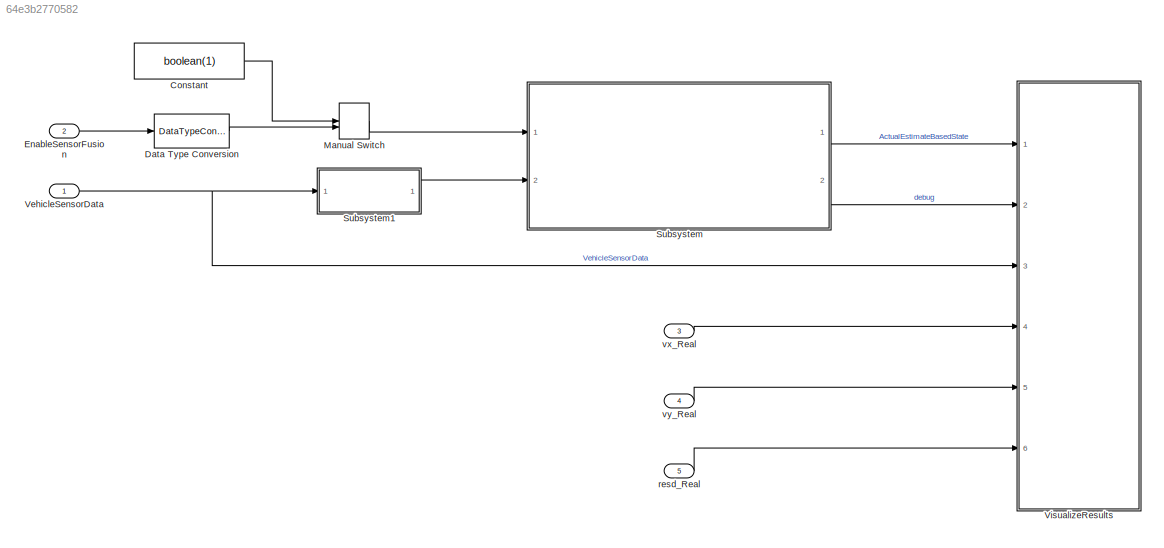
MODEL slx_64e3b2770582
KIND model
CONFIG AbsTol = auto
CONFIG EnableMultiTasking = on
CONFIG FixedStep = 0.002
CONFIG MaxStep = auto
CONFIG MinStep = auto
CONFIG RelTol = 1e-3
CONFIG SampleTimeConstraint = Unconstrained
CONFIG Solver = ode2
CONFIG SolverMode = Auto
CONFIG SolverName = ode2
CONFIG StartTime = 0
CONFIG StopTime = 700
WORKSPACE source: MAT-file member
WORKSPACE m = 1000
BLOCK [Constant] Constant
  Value = boolean(1)
BLOCK [DataTypeConversion] Data Type Conversion
  OutDataTypeStr = boolean
  RndMeth = Floor
  SaturateOnIntegerOverflow = off
BLOCK [Inport] EnableSensorFusion
  IconDisplay = Port number
  OutDataTypeStr = double
  Port = 2
BLOCK [ManualSwitch] Manual Switch
  CurrentSetting = 0
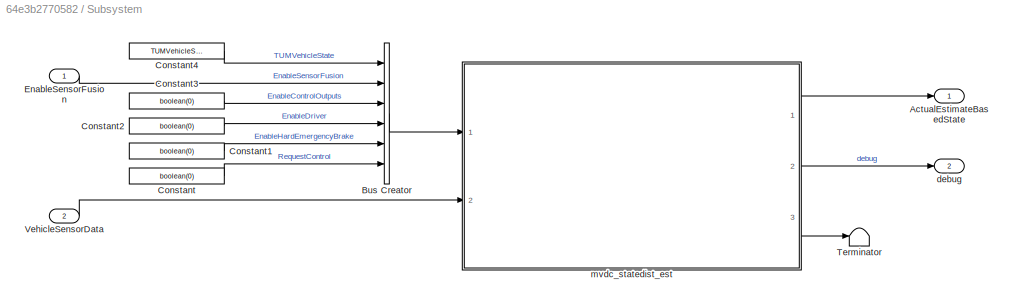
BLOCK [SubSystem] Subsystem
  Ports = [2, 2]
  RequestExecContextInheritance = off
BLOCK [Outport] Subsystem/ActualEstimateBasedState
  IconDisplay = Port number
BLOCK [BusCreator] Subsystem/Bus Creator
  DisplayOption = bar
  InheritFromInputs = on
  Inputs = 6
  Ports = [6, 1]
BLOCK [Constant] Subsystem/Constant
  Value = boolean(0)
BLOCK [Constant] Subsystem/Constant1
  Value = boolean(0)
BLOCK [Constant] Subsystem/Constant2
  Value = boolean(0)
BLOCK [Constant] Subsystem/Constant3
  Value = boolean(0)
BLOCK [Constant] Subsystem/Constant4
  Value = TUMVehicleState.DRIVING
BLOCK [Inport] Subsystem/EnableSensorFusion
  IconDisplay = Port number
BLOCK [Terminator] Subsystem/Terminator
BLOCK [Inport] Subsystem/VehicleSensorData
  IconDisplay = Port number
  Port = 2
BLOCK [Outport] Subsystem/debug
  IconDisplay = Port number
  Port = 2
BLOCK [ModelReference] Subsystem/mvdc_statedist_est
  ModelNameDialog = mvdc_state_estimation
  ModelReferenceVersion = 1.972
  Ports = [2, 3]
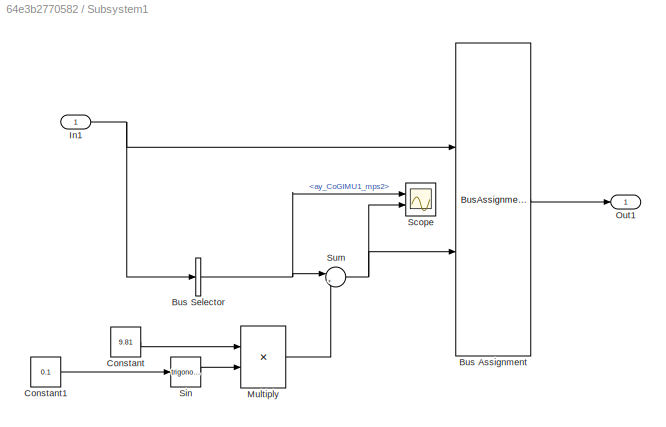
BLOCK [SubSystem] Subsystem1
  Ports = [1, 1]
  RequestExecContextInheritance = off
BLOCK [BusAssignment] Subsystem1/Bus Assignment
  AssignedSignals = ay_CoGIMU1_mps2
  Ports = [2, 1]
BLOCK [BusSelector] Subsystem1/Bus Selector
  OutputAsBus = off
  OutputSignals = ay_CoGIMU1_mps2
  Ports = [1, 1]
BLOCK [Constant] Subsystem1/Constant
  Value = 9.81
BLOCK [Constant] Subsystem1/Constant1
  Value = 0.1
BLOCK [Inport] Subsystem1/In1
  IconDisplay = Port number
BLOCK [Product] Subsystem1/Multiply
  InputSameDT = off
  OutDataTypeStr = Inherit: Inherit via internal rule
  Ports = [2, 1]
  RndMeth = Floor
  SaturateOnIntegerOverflow = off
BLOCK [Outport] Subsystem1/Out1
  IconDisplay = Port number
BLOCK [Scope] Subsystem1/Scope
  Floating = off
  NumInputPorts = 2
  Ports = [2]
  ScopeSpecificationString = Simulink.scopes.TimeScopeBlockCfg('CurrentConfiguration', extmgr.ConfigurationSet(extmgr.Configuration('Core','General UI',true),extmgr.Configuration('Core','Source UI',true),extmgr.Configuration('Sources','WiredSimulink',true,'DataLoggingVariableName','ScopeData2'),extmgr.Configuration('Visuals','Time Domain',true,'SerializedDisplays',{struct('MinYLimReal','-9.60346','MaxYLimReal','10.15177','YLa...<+1430ch>
BLOCK [Trigonometry] Subsystem1/Sin
  Ports = [1, 1]
BLOCK [Sum] Subsystem1/Sum
  IconShape = round
  InputSameDT = off
  Inputs = |++
  OutDataTypeStr = Inherit: Inherit via internal rule
  Ports = [2, 1]
  SaturateOnIntegerOverflow = off
BLOCK [Inport] VehicleSensorData
  IconDisplay = Port number
  OutDataTypeStr = Bus: VehicleSensorData
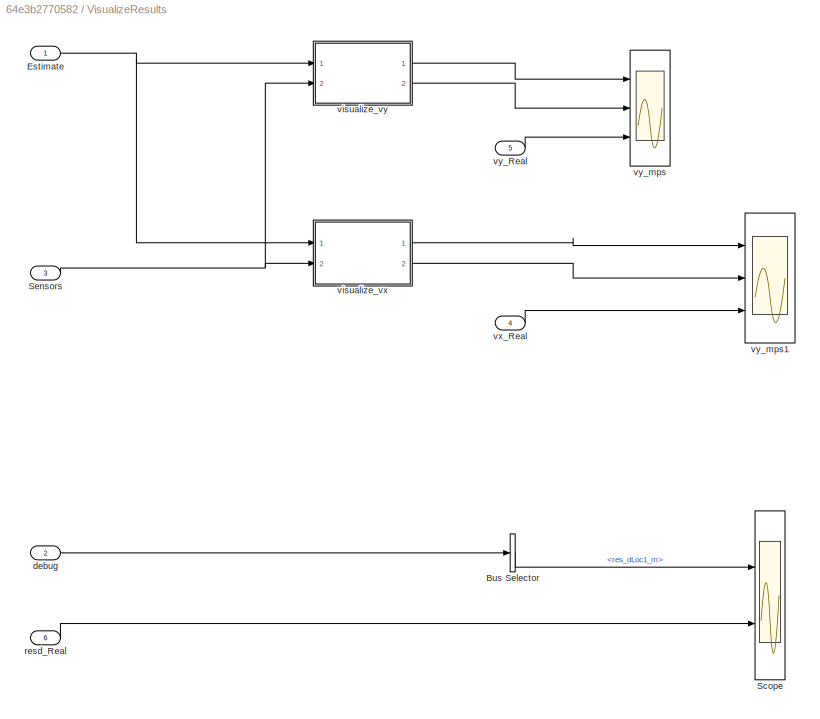
BLOCK [SubSystem] VisualizeResults
  Ports = [6]
  RequestExecContextInheritance = off
BLOCK [BusSelector] VisualizeResults/Bus Selector
  OutputAsBus = off
  OutputSignals = Residuals.res_dLoc1_m
  Ports = [1, 1]
BLOCK [Inport] VisualizeResults/Estimate
  IconDisplay = Port number
BLOCK [Scope] VisualizeResults/Scope
  Floating = off
  NumInputPorts = 2
  Ports = [2]
  ScopeSpecificationString = Simulink.scopes.TimeScopeBlockCfg('CurrentConfiguration', extmgr.ConfigurationSet(extmgr.Configuration('Core','General UI',true),extmgr.Configuration('Core','Source UI',true),extmgr.Configuration('Sources','WiredSimulink',true,'DataLoggingVariableName','ScopeData1'),extmgr.Configuration('Visuals','Time Domain',true,'SerializedDisplays',{struct('MinYLimReal','-0.07551','MaxYLimReal','0.12597','YLab...<+1453ch>
BLOCK [Inport] VisualizeResults/Sensors
  IconDisplay = Port number
  Port = 3
BLOCK [Inport] VisualizeResults/debug
  IconDisplay = Port number
  Port = 2
BLOCK [Inport] VisualizeResults/resd_Real
  IconDisplay = Port number
  Port = 6
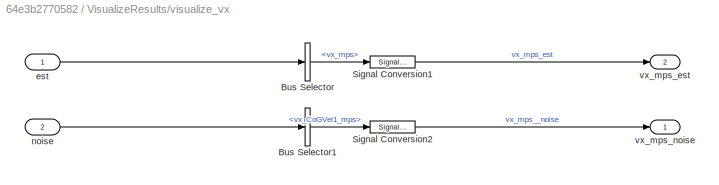
BLOCK [SubSystem] VisualizeResults/visualize_vx
  Ports = [2, 2]
  RequestExecContextInheritance = off
BLOCK [BusSelector] VisualizeResults/visualize_vx/Bus Selector
  OutputAsBus = off
  OutputSignals = vx_mps
  Ports = [1, 1]
BLOCK [BusSelector] VisualizeResults/visualize_vx/Bus Selector1
  OutputAsBus = off
  OutputSignals = vx_CoGVel1_mps
  Ports = [1, 1]
BLOCK [SignalConversion] VisualizeResults/visualize_vx/Signal Conversion1
  OverrideOpt = off
BLOCK [SignalConversion] VisualizeResults/visualize_vx/Signal Conversion2
  OverrideOpt = off
BLOCK [Inport] VisualizeResults/visualize_vx/est
  IconDisplay = Port number
BLOCK [Inport] VisualizeResults/visualize_vx/noise
  IconDisplay = Port number
  Port = 2
BLOCK [Outport] VisualizeResults/visualize_vx/vx_mps_est
  IconDisplay = Port number
  Port = 2
BLOCK [Outport] VisualizeResults/visualize_vx/vx_mps_noise
  IconDisplay = Port number
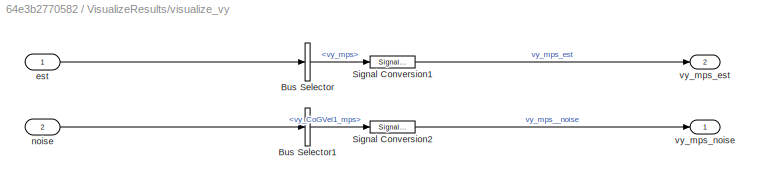
BLOCK [SubSystem] VisualizeResults/visualize_vy
  Ports = [2, 2]
  RequestExecContextInheritance = off
BLOCK [BusSelector] VisualizeResults/visualize_vy/Bus Selector
  OutputAsBus = off
  OutputSignals = vy_mps
  Ports = [1, 1]
BLOCK [BusSelector] VisualizeResults/visualize_vy/Bus Selector1
  OutputAsBus = off
  OutputSignals = vy_CoGVel1_mps
  Ports = [1, 1]
BLOCK [SignalConversion] VisualizeResults/visualize_vy/Signal Conversion1
  OverrideOpt = off
BLOCK [SignalConversion] VisualizeResults/visualize_vy/Signal Conversion2
  OverrideOpt = off
BLOCK [Inport] VisualizeResults/visualize_vy/est
  IconDisplay = Port number
BLOCK [Inport] VisualizeResults/visualize_vy/noise
  IconDisplay = Port number
  Port = 2
BLOCK [Outport] VisualizeResults/visualize_vy/vy_mps_est
  IconDisplay = Port number
  Port = 2
BLOCK [Outport] VisualizeResults/visualize_vy/vy_mps_noise
  IconDisplay = Port number
BLOCK [Inport] VisualizeResults/vx_Real
  IconDisplay = Port number
  Port = 4
BLOCK [Inport] VisualizeResults/vy_Real
  IconDisplay = Port number
  Port = 5
BLOCK [Scope] VisualizeResults/vy_mps
  Floating = off
  NumInputPorts = 3
  Ports = [3]
  ScopeSpecificationString = Simulink.scopes.TimeScopeBlockCfg('CurrentConfiguration', extmgr.ConfigurationSet(extmgr.Configuration('Core','General UI',true),extmgr.Configuration('Core','Source UI',true),extmgr.Configuration('Sources','WiredSimulink',true,'DataLoggingVariableName','ScopeData4'),extmgr.Configuration('Visuals','Time Domain',true,'SerializedDisplays',{struct('MinYLimReal','-1.3896','MaxYLimReal','2.96192','YLabe...<+1488ch>
BLOCK [Scope] VisualizeResults/vy_mps1
  Floating = off
  NumInputPorts = 3
  Ports = [3]
  ScopeSpecificationString = Simulink.scopes.TimeScopeBlockCfg('CurrentConfiguration', extmgr.ConfigurationSet(extmgr.Configuration('Core','General UI',true),extmgr.Configuration('Core','Source UI',true),extmgr.Configuration('Sources','WiredSimulink',true,'DataLoggingVariableName','ScopeData1'),extmgr.Configuration('Visuals','Time Domain',true,'SerializedDisplays',{struct('MinYLimReal','10.63907','MaxYLimReal','13.03737','YLa...<+1496ch>
BLOCK [Inport] resd_Real
  IconDisplay = Port number
  Port = 5
BLOCK [Inport] vx_Real
  IconDisplay = Port number
  Port = 3
BLOCK [Inport] vy_Real
  IconDisplay = Port number
  Port = 4
LINE Constant:1 -> Manual Switch:1
LINE Data Type Conversion:1 -> Manual Switch:2
LINE EnableSensorFusion:1 -> Data Type Conversion:1
LINE Manual Switch:1 -> Subsystem:1
LINE Subsystem/Bus Creator:1 -> Subsystem/mvdc_statedist_est:1
LINE Subsystem/Constant1:1 -> Subsystem/Bus Creator:5
LINE Subsystem/Constant2:1 -> Subsystem/Bus Creator:4
LINE Subsystem/Constant3:1 -> Subsystem/Bus Creator:3
LINE Subsystem/Constant4:1 -> Subsystem/Bus Creator:1
LINE Subsystem/Constant:1 -> Subsystem/Bus Creator:6
LINE Subsystem/EnableSensorFusion:1 -> Subsystem/Bus Creator:2
LINE Subsystem/VehicleSensorData:1 -> Subsystem/mvdc_statedist_est:2
LINE Subsystem/mvdc_statedist_est:1 -> Subsystem/ActualEstimateBasedState:1
LINE Subsystem/mvdc_statedist_est:2 -> Subsystem/debug:1
LINE Subsystem/mvdc_statedist_est:3 -> Subsystem/Terminator:1
LINE Subsystem1/Bus Assignment:1 -> Subsystem1/Out1:1
NET Subsystem1/Bus Selector:1 -> Subsystem1/Scope:1, Subsystem1/Sum:1
LINE Subsystem1/Constant1:1 -> Subsystem1/Sin:1
LINE Subsystem1/Constant:1 -> Subsystem1/Multiply:1
NET Subsystem1/In1:1 -> Subsystem1/Bus Assignment:1, Subsystem1/Bus Selector:1
LINE Subsystem1/Multiply:1 -> Subsystem1/Sum:2
LINE Subsystem1/Sin:1 -> Subsystem1/Multiply:2
NET Subsystem1/Sum:1 -> Subsystem1/Bus Assignment:2, Subsystem1/Scope:2
LINE Subsystem1:1 -> Subsystem:2
LINE Subsystem:1 -> VisualizeResults:1
LINE Subsystem:2 -> VisualizeResults:2
NET VehicleSensorData:1 -> Subsystem1:1, VisualizeResults:3
LINE VisualizeResults/Bus Selector:1 -> VisualizeResults/Scope:1
NET VisualizeResults/Estimate:1 -> VisualizeResults/visualize_vx:1, VisualizeResults/visualize_vy:1
NET VisualizeResults/Sensors:1 -> VisualizeResults/visualize_vx:2, VisualizeResults/visualize_vy:2
LINE VisualizeResults/debug:1 -> VisualizeResults/Bus Selector:1
LINE VisualizeResults/resd_Real:1 -> VisualizeResults/Scope:2
LINE VisualizeResults/visualize_vx/Bus Selector1:1 -> VisualizeResults/visualize_vx/Signal Conversion2:1
LINE VisualizeResults/visualize_vx/Bus Selector:1 -> VisualizeResults/visualize_vx/Signal Conversion1:1
LINE VisualizeResults/visualize_vx/Signal Conversion1:1 -> VisualizeResults/visualize_vx/vx_mps_est:1
LINE VisualizeResults/visualize_vx/Signal Conversion2:1 -> VisualizeResults/visualize_vx/vx_mps_noise:1
LINE VisualizeResults/visualize_vx/est:1 -> VisualizeResults/visualize_vx/Bus Selector:1
LINE VisualizeResults/visualize_vx/noise:1 -> VisualizeResults/visualize_vx/Bus Selector1:1
LINE VisualizeResults/visualize_vx:1 -> VisualizeResults/vy_mps1:1
LINE VisualizeResults/visualize_vx:2 -> VisualizeResults/vy_mps1:2
LINE VisualizeResults/visualize_vy/Bus Selector1:1 -> VisualizeResults/visualize_vy/Signal Conversion2:1
LINE VisualizeResults/visualize_vy/Bus Selector:1 -> VisualizeResults/visualize_vy/Signal Conversion1:1
LINE VisualizeResults/visualize_vy/Signal Conversion1:1 -> VisualizeResults/visualize_vy/vy_mps_est:1
LINE VisualizeResults/visualize_vy/Signal Conversion2:1 -> VisualizeResults/visualize_vy/vy_mps_noise:1
LINE VisualizeResults/visualize_vy/est:1 -> VisualizeResults/visualize_vy/Bus Selector:1
LINE VisualizeResults/visualize_vy/noise:1 -> VisualizeResults/visualize_vy/Bus Selector1:1
LINE VisualizeResults/visualize_vy:1 -> VisualizeResults/vy_mps:1
LINE VisualizeResults/visualize_vy:2 -> VisualizeResults/vy_mps:2
LINE VisualizeResults/vx_Real:1 -> VisualizeResults/vy_mps1:3
LINE VisualizeResults/vy_Real:1 -> VisualizeResults/vy_mps:3
LINE resd_Real:1 -> VisualizeResults:6
LINE vx_Real:1 -> VisualizeResults:4
LINE vy_Real:1 -> VisualizeResults:5
note: NET lines group one-source signal fan-out (src -> all destinations, sorted); 1:1 wires keep LINE
CHART Test Assessment states=3 transitions=10
  STATE_LABEL 'checkSensorFusion\n'
  STATE_LABEL "SensorFusionNotWorking\n% check if all residuals are zero (sensors not used to fuse)\nverify(res_vx == 0, 'SFNW:vx_residual', 'SE vx residual failed (Fusion Off)')\nverify(res_vy == 0, 'SFNW:vy_residual', 'SE vy residual failed (Fusion Off)')\nverify(res_xGPS == 0, 'SFNW:xGPS_residual', 'SE xGPS residual failed (Fusion Off)')\nverify(res_yGPS == 0, 'SFNW:yGPS_residual', 'SE yGPS residual failed (Fusion...<+1021ch>"
  STATE_LABEL "SensorFusionWorking \n% check if all residuals of the sensors which are used are small, since the reset is performed at initialization this should be directly the case\nverify(abs(res_vx) < 2, 'SE:vx_residual', 'SE vx residual failed')\nverify(abs(res_vy) < 2, 'SE:vy_residual', 'SE vy residual failed')\nverify(abs(res_xGPS) < 0.5, 'SE:xGPS_residual', 'SE xGPS residual failed')\nverify(abs(res_yGPS) < 0...<+625ch>"
  STATE_LABEL '[EnableSensorFusion_b == false\n]'
  STATE_LABEL '[~in(SensorFusionNotWorking)]'
  STATE_LABEL '[~in(SensorFusionWorking)]'
  STATE_LABEL "SensorFusionNotWorking\n% check if all residuals are zero (sensors not used to fuse)\nverify(res_vx == 0, 'SFNW:vx_residual', 'SE vx residual failed (Fusion Off)')\nverify(res_vy == 0, 'SFNW:vy_residual', 'SE vy residual failed (Fusion Off)')\nverify(res_xGPS == 0, 'SFNW:xGPS_residual', 'SE xGPS residual failed (Fusion Off)')\nverify(res_yGPS == 0, 'SFNW:yGPS_residual', 'SE yGPS residual failed (Fusion...<+1021ch>"
  STATE_LABEL "SensorFusionWorking \n% check if all residuals of the sensors which are used are small, since the reset is performed at initialization this should be directly the case\nverify(abs(res_vx) < 2, 'SE:vx_residual', 'SE vx residual failed')\nverify(abs(res_vy) < 2, 'SE:vy_residual', 'SE vy residual failed')\nverify(abs(res_xGPS) < 0.5, 'SE:xGPS_residual', 'SE xGPS residual failed')\nverify(abs(res_yGPS) < 0...<+625ch>"
CHART Test Sequence states=4 transitions=4
  STATE_LABEL 'waitforready \n% wait a few seconds with already valid GPS position (normal standstill)\nGPSPosValid_b = true;\nVLOCPosValid_b = false;\nEnableSensorFusion_b = false;\n'
  STATE_LABEL 'fusesensors\n% enable sensor fusion from external source (vehicle state machine)\nEnableSensorFusion_b = true;\n'
  STATE_LABEL 'stopfusionshortly\n% disable sensor fusion from external source, while gps data stays valid. The filter should switch to sensors only mode.\nEnableSensorFusion_b = false;'
  STATE_LABEL 'fusesensors2\n% reenable sensor fusion from external source, this should reinitialize the filter properly.\nEnableSensorFusion_b = true;'
CHART Test Assessment states=7 transitions=27
  STATE_LABEL 'checkSensorFusion\n'
  STATE_LABEL "SensorFusionNotWorking\n% check if all residuals are zero (sensors not used to fuse)\nverify(res_vx == 0, 'SFNW:vx_residual', 'SE vx residual failed (Fusion Off)')\nverify(res_vy == 0, 'SFNW:vy_residual', 'SE vy residual failed (Fusion Off)')\nverify(res_xGPS == 0, 'SFNW:xGPS_residual', 'SE xGPS residual failed (Fusion Off)')\nverify(res_yGPS == 0, 'SFNW:yGPS_residual', 'SE yGPS residual failed (Fusion...<+1019ch>"
  STATE_LABEL 'SensorFusionWorking '
  STATE_LABEL "VLOCActive\n% if VLOC is enabled the status should include VLOC\nverify(SE_Status == SE_VEHICLE_VLOC_VALID, 'SE:StatusVLOCValid', 'VLOC status failed')\n% velocity estimation status stays valid\nverify(OE_Status == OE_VALID, 'OE:StatusVLOCValid', 'OE status failed (Fusion Off)')"  <repeated x3 — deduplicated; at blocks: Test Assessment>
  STATE_LABEL "GPSActive\n% if VLOC is not enabled but GPS is enabled the status should be\nverify(SE_Status == SE_VEHICLE_GPS_VALID, 'SE:StatusGPSValid', 'GPS status failed')\n% velocity estimation status stays valid\nverify(OE_Status == OE_VALID, 'OE:StatusGPSValid', 'OE status failed (Fusion Off)')"  <repeated x3 — deduplicated; at blocks: Test Assessment>
  STATE_LABEL "BothActive\n% if VLOC and GPS is enabled the status should be\nverify(SE_Status == SE_VEHICLE_GPS_VLOC_VALID, 'SE:StatusGPSVLOCValid', 'GPS_VLOC status failed')\n% velocity estimation status stays valid\nverify(OE_Status == OE_VALID, 'OE:StatusGPSValid', 'OE status failed (Fusion Off)')"  <repeated x3 — deduplicated; at blocks: Test Assessment>
  STATE_LABEL "VLOC_NotActiveButGPSActive \n% if GPS is not valid anymore, the status should go to not valid\nverify(SE_Status == SE_NOTVALID, 'SE:StatusNotValid', 'not valid status failed')\n% velocity estimation status stays valid\nverify(OE_Status == OE_VALID, 'OE:StatusNothingValid', 'OE status failed (Fusion Off)')"  <repeated x3 — deduplicated; at blocks: Test Assessment>
  STATE_LABEL '[(VLOCValid_b && ~GPSValid_b)\n]'
  STATE_LABEL '[~in(VLOCActive)]'
  STATE_LABEL '[(~VLOCValid_b && GPSValid_b)\n]'
  STATE_LABEL '[~in(GPSActive)]'
  STATE_LABEL '[(VLOCValid_b && GPSValid_b)\n]'
  STATE_LABEL '[~in(BothActive)]'
  STATE_LABEL '[~in(VLOC_NotActiveButGPSActive)]'
  STATE_LABEL '[~in(SensorFusionNotWorking)]'
  STATE_LABEL '[EnableSensorFusion_b == false\n]'
  STATE_LABEL '[~in(SensorFusionWorking)]'
  STATE_LABEL "SensorFusionNotWorking\n% check if all residuals are zero (sensors not used to fuse)\nverify(res_vx == 0, 'SFNW:vx_residual', 'SE vx residual failed (Fusion Off)')\nverify(res_vy == 0, 'SFNW:vy_residual', 'SE vy residual failed (Fusion Off)')\nverify(res_xGPS == 0, 'SFNW:xGPS_residual', 'SE xGPS residual failed (Fusion Off)')\nverify(res_yGPS == 0, 'SFNW:yGPS_residual', 'SE yGPS residual failed (Fusion...<+1019ch>"
  STATE_LABEL 'SensorFusionWorking '
  STATE_LABEL '[(VLOCValid_b && ~GPSValid_b)\n]'
  STATE_LABEL '[~in(VLOCActive)]'
  STATE_LABEL '[(~VLOCValid_b && GPSValid_b)\n]'
  STATE_LABEL '[~in(GPSActive)]'
  STATE_LABEL '[(VLOCValid_b && GPSValid_b)\n]'
  STATE_LABEL '[~in(BothActive)]'
  STATE_LABEL '[~in(VLOC_NotActiveButGPSActive)]'
CHART Test Sequence states=8 transitions=8
  STATE_LABEL 'waitforready \n% wait a few seconds with already valid GPS position (normal standstill)\nGPSPosValid_b = true;\nVLOCPosValid_b = false;\nEnableSensorFusion_b = false;\n'
  STATE_LABEL 'fusesensors\n% enable sensor fusion from external source (vehicle state machine)\nEnableSensorFusion_b = true;\n'
  STATE_LABEL 'waituntilvlocready\n% waits until the vloc measurement is available\nVLOCPosValid_b = true;'
  STATE_LABEL 'vlocnotworkingshortly\n% short failure of vloc\nVLOCPosValid_b = false;'
  STATE_LABEL 'fusesensors2\n% after one second vloc is coming back\nVLOCPosValid_b = true;'
  STATE_LABEL 'gpsfailurenotworkingshortly \n% short failure of gps\nGPSPosValid_b = false;'
  STATE_LABEL 'vlocnotworking\n% additional failure of vloc\nVLOCPosValid_b = false;'
  STATE_LABEL 'fusesensors3\n% fuse all sensors again afterwards\nVLOCPosValid_b = true;\nGPSPosValid_b = true;'
CHART Test Assessment1 states=3 transitions=10
  STATE_LABEL 'checkGPSFusion\n'
  STATE_LABEL "GPSFusionActive\n% verify if residuals are small\nverify(abs(res_xGPS) <= 1, 'GPSActive:xGPS_residual', 'SE xGPS residual failed (Fusion On)')\nverify(abs(res_yGPS) <= 1, 'GPSActive:yGPS_residual', 'SE yGPS residual failed (Fusion On)')\nverify(abs(res_psiGPS) <= 0.3, 'GPSActive:psiGPS_residual', 'SE psiGPS residual failed (Fusion On)')\n% verify if difference between measurement and estimation is smal...<+344ch>"
  STATE_LABEL "GPSFusionNotActive \n% check if all residuals are zero (sensors not used to fuse)\nverify(res_xGPS == 0, 'GPSNotActive:xGPS_residual', 'SE xGPS residual failed (Fusion Off)')\nverify(res_yGPS == 0, 'GPSNotActive:yGPS_residual', 'SE yGPS residual failed (Fusion Off)')\nverify(res_psiGPS == 0, 'GPSNotActive:psiGPS_residual', 'SE psiGPS residual failed (Fusion Off)')"
  STATE_LABEL '[~in(GPSFusionActive)]'
  STATE_LABEL '[(UpdateGPS)\n]'
  STATE_LABEL '[~in(GPSFusionNotActive)]'
  STATE_LABEL "GPSFusionActive\n% verify if residuals are small\nverify(abs(res_xGPS) <= 1, 'GPSActive:xGPS_residual', 'SE xGPS residual failed (Fusion On)')\nverify(abs(res_yGPS) <= 1, 'GPSActive:yGPS_residual', 'SE yGPS residual failed (Fusion On)')\nverify(abs(res_psiGPS) <= 0.3, 'GPSActive:psiGPS_residual', 'SE psiGPS residual failed (Fusion On)')\n% verify if difference between measurement and estimation is smal...<+344ch>"
  STATE_LABEL "GPSFusionNotActive \n% check if all residuals are zero (sensors not used to fuse)\nverify(res_xGPS == 0, 'GPSNotActive:xGPS_residual', 'SE xGPS residual failed (Fusion Off)')\nverify(res_yGPS == 0, 'GPSNotActive:yGPS_residual', 'SE yGPS residual failed (Fusion Off)')\nverify(res_psiGPS == 0, 'GPSNotActive:psiGPS_residual', 'SE psiGPS residual failed (Fusion Off)')"
CHART Test Assessment2 states=3 transitions=10
  STATE_LABEL 'checkVLOCFusion\n'
  STATE_LABEL "VLOCFusionActive\n% verify if residuals are small\nverify(abs(res_xVLOC) <= 1, 'VLOCActive:xVLOC_residual', 'SE xVLOC residual failed (Fusion On)')\nverify(abs(res_yVLOC) <= 1, 'VLOCActive:yVLOC_residual', 'SE yVLOC residual failed (Fusion On)')\nverify(abs(res_psiVLOC) <= 0.3, 'VLOCActive:psiVLOC_residual', 'SE psiVLOC residual failed (Fusion On)')\n% verify if difference between measurement and estim...<+369ch>"
  STATE_LABEL "VLOCFusionNotActive \n% check if all residuals are zero (sensors not used to fuse)\nverify(res_xVLOC == 0, 'VLOCNotActive:xVLOC_residual', 'SE xVLOC residual failed (Fusion Off)')\nverify(res_yVLOC == 0, 'VLOCNotActive:yVLOC_residual', 'SE yVLOC residual failed (Fusion Off)')\nverify(res_psiVLOC == 0, 'VLOCNotActive:psiVLOC_residual', 'SE psiVLOC residual failed (Fusion Off)')"
  STATE_LABEL '[~in(VLOCFusionActive)]'
  STATE_LABEL '[(UpdateVLOC)\n]'
  STATE_LABEL '[~in(VLOCFusionNotActive)]'
  STATE_LABEL "VLOCFusionActive\n% verify if residuals are small\nverify(abs(res_xVLOC) <= 1, 'VLOCActive:xVLOC_residual', 'SE xVLOC residual failed (Fusion On)')\nverify(abs(res_yVLOC) <= 1, 'VLOCActive:yVLOC_residual', 'SE yVLOC residual failed (Fusion On)')\nverify(abs(res_psiVLOC) <= 0.3, 'VLOCActive:psiVLOC_residual', 'SE psiVLOC residual failed (Fusion On)')\n% verify if difference between measurement and estim...<+369ch>"
  STATE_LABEL "VLOCFusionNotActive \n% check if all residuals are zero (sensors not used to fuse)\nverify(res_xVLOC == 0, 'VLOCNotActive:xVLOC_residual', 'SE xVLOC residual failed (Fusion Off)')\nverify(res_yVLOC == 0, 'VLOCNotActive:yVLOC_residual', 'SE yVLOC residual failed (Fusion Off)')\nverify(res_psiVLOC == 0, 'VLOCNotActive:psiVLOC_residual', 'SE psiVLOC residual failed (Fusion Off)')"
CHART Test Assessment states=6 transitions=20
  STATE_LABEL 'waitForSensorFusion'
  STATE_LABEL 'checkSensorFusion'
  STATE_LABEL "NotFuseGPS\n% check if all gps residuals are zero (sensors not used to fuse)\nverify(res_xGPS == 0, 'SE:xGPS_residual', 'SE xGPS residual failed (GPS Off)')\nverify(res_yGPS == 0, 'SE:yGPS_residual', 'SE yGPS residual failed (GPS Off)')\nverify(res_psiGPS == 0, 'SE:psiGPS_residual', 'SE psiGPS residual failed (GPS Off)')\n% check if the state estimate stays near the actual gps position\nverify(abs(diff_...<+200ch>"
  STATE_LABEL "GPSDisabled\n% check if the kalman filter state is SE_NOTVALID\nverify(SE_Status == SE_NOTVALID, 'SE:StatusDisabled', 'SE status failed (GPS Off)')"
  STATE_LABEL "GPSshortoff \n% check if the kalman filter state is still valid\nverify(SE_Status == SE_VEHICLE_GPS_VALID, 'SE:StatusShortOff', 'SE status failed (GPS Off)')"
  STATE_LABEL '[GPSValid == false\n]'
  STATE_LABEL '[~in(GPSDisabled)]'
  STATE_LABEL '[~in(GPSshortoff)]'
  STATE_LABEL "EverythingOK \n% check if the kalman filter state is SE_VEHICLE_VALID\nverify(SE_Status == SE_VEHICLE_GPS_VALID, 'SE:Status', 'SE status failed')\n% check if residuals converge after a time of 1 second\nverify(abs(res_xGPS) < 0.5, 'SE:x_Recovery', 'SE x recovery failed')\nverify(abs(res_yGPS) < 0.5, 'SE:y_Recovery', 'SE y recovery failed')\nverify(abs(res_psiGPS) < 0.1, 'SE:psi_Recovery', 'SE psi recove...<+11ch>"
  STATE_LABEL '[(GPSValid == false || DisableGPSUpdate == true)\n]'
  STATE_LABEL '[~in(NotFuseGPS)]'
  STATE_LABEL '[~in(EverythingOK)]'
  STATE_LABEL "NotFuseGPS\n% check if all gps residuals are zero (sensors not used to fuse)\nverify(res_xGPS == 0, 'SE:xGPS_residual', 'SE xGPS residual failed (GPS Off)')\nverify(res_yGPS == 0, 'SE:yGPS_residual', 'SE yGPS residual failed (GPS Off)')\nverify(res_psiGPS == 0, 'SE:psiGPS_residual', 'SE psiGPS residual failed (GPS Off)')\n% check if the state estimate stays near the actual gps position\nverify(abs(diff_...<+200ch>"
  STATE_LABEL "GPSDisabled\n% check if the kalman filter state is SE_NOTVALID\nverify(SE_Status == SE_NOTVALID, 'SE:StatusDisabled', 'SE status failed (GPS Off)')"
  STATE_LABEL "GPSshortoff \n% check if the kalman filter state is still valid\nverify(SE_Status == SE_VEHICLE_GPS_VALID, 'SE:StatusShortOff', 'SE status failed (GPS Off)')"
  STATE_LABEL '[GPSValid == false\n]'
  STATE_LABEL '[~in(GPSDisabled)]'
  STATE_LABEL '[~in(GPSshortoff)]'
  STATE_LABEL "GPSDisabled\n% check if the kalman filter state is SE_NOTVALID\nverify(SE_Status == SE_NOTVALID, 'SE:StatusDisabled', 'SE status failed (GPS Off)')"
  STATE_LABEL "GPSshortoff \n% check if the kalman filter state is still valid\nverify(SE_Status == SE_VEHICLE_GPS_VALID, 'SE:StatusShortOff', 'SE status failed (GPS Off)')"
  STATE_LABEL "EverythingOK \n% check if the kalman filter state is SE_VEHICLE_VALID\nverify(SE_Status == SE_VEHICLE_GPS_VALID, 'SE:Status', 'SE status failed')\n% check if residuals converge after a time of 1 second\nverify(abs(res_xGPS) < 0.5, 'SE:x_Recovery', 'SE x recovery failed')\nverify(abs(res_yGPS) < 0.5, 'SE:y_Recovery', 'SE y recovery failed')\nverify(abs(res_psiGPS) < 0.1, 'SE:psi_Recovery', 'SE psi recove...<+11ch>"
CHART Test Sequence states=6 transitions=6
  STATE_LABEL 'waitforready \n% wait a few seconds with already valid GPS position (normal standstill)\nGPSPosValid_b = true;\nVLOCPosValid_b = false;\nEnableSensorFusion_b = false;\nDisableGPSUpdate = false;\n'
  STATE_LABEL 'fusesensors\n% enable sensor fusion from external source (vehicle state machine)\nEnableSensorFusion_b = true;\n'
  STATE_LABEL 'stopgpsfusionshortly\n% disable gps data valid, while sensor fusion stays enabled. The filter should switch to prediction for position states.\nGPSPosValid_b = false;'
  STATE_LABEL 'fusesensors2\n% reenable gps data valid, the filter should converge back to the actual state\nGPSPosValid_b = true;'
  STATE_LABEL 'stopgpsupdateshortly\n% stop change in timestamp of GPS to simulate a short cut off of data, kalman filter should only predict position states but stays valid\nDisableGPSUpdate = true;'
  STATE_LABEL 'fusesensors3\n% filter should converge back to the actual state\nDisableGPSUpdate = false;'
CHART MATLAB Function1 states=1 transitions=1
  STATE_LABEL 'eML_blk_kernel()'
  STATE_LABEL 'SCRIPT:\nfunction y = fcn(u)\n\ny = normalizeAngle(u); '
CHART Test Sequence states=11 transitions=11
  STATE_LABEL 'fusesensors\n% set all errors to zero and simulate normal operation\nerror_xGPS = 0;\nerror_yGPS = 0;\nerror_psiGPS = 0;\nerror_vx = 0;\nerror_vy = 0;\nerror_b = false;\n\n'
  STATE_LABEL 'error_xGPS_state\n% simulate an additive error on the x measurement of the gps\nerror_xGPS = 2;\nerror_b = true;\n'
  STATE_LABEL 'fusesensors1\n% set all errors to zero and simulate normal operation\nerror_xGPS = 0;\nerror_b = false;'
  STATE_LABEL 'error_yGPS_state\n% simulate an additive error on the y measurement of the gps\nerror_yGPS = 2;\nerror_b = true;'
  STATE_LABEL 'fusesensors2\n% set all errors to zero and simulate normal operation\nerror_yGPS = 0;\nerror_b = false;'
  STATE_LABEL 'error_psiGPS_state\n% simulate an additive error on the psi measurement of the gps\nerror_psiGPS = 1;\nerror_b = true;'
  STATE_LABEL 'fusesensors3\n% set all errors to zero and simulate normal operation\nerror_psiGPS = 0;\nerror_b = false;'
  STATE_LABEL 'error_vx_state\n% simulate an additive error on the vx measurement\nerror_vx = 4;\nerror_b = true;'
  STATE_LABEL 'fusesensors4\n% set all errors to zero and simulate normal operation\nerror_vx = 0;\nerror_b = false;'
  STATE_LABEL 'error_vy_state\n% simulate an additive error on the vx measurement\nerror_vy = 4;\nerror_b = true;'
  STATE_LABEL 'fusesensors5\n% set all errors to zero and simulate normal operation\nerror_vy = 0;\nerror_b = false;'
CHART Test Assessment1 states=3 transitions=10
  STATE_LABEL 'step_1\n% checks the filter state for the case GPS only. Everytime there is a sensor fault, the filter state should go to SE_NOTVALID'
  STATE_LABEL "sensor_error\nverify(Status == SE_NOTVALID, 'SE:SensorFaultCheck_FAIL', 'Sensor fault check failed')\n"
  STATE_LABEL "sensor_ok\n% give the filter 0.5 seconds to recover\nverify(~after(0.5, sec) || Status == SE_VEHICLE_GPS_VALID, 'SE:SensorFaultCheck_OK', 'Sensor fault check failed')"
  STATE_LABEL '[error_b\n]'
  STATE_LABEL '[~in(sensor_error)]'
  STATE_LABEL '[~in(sensor_ok)]'
  STATE_LABEL "sensor_error\nverify(Status == SE_NOTVALID, 'SE:SensorFaultCheck_FAIL', 'Sensor fault check failed')\n"
  STATE_LABEL "sensor_ok\n% give the filter 0.5 seconds to recover\nverify(~after(0.5, sec) || Status == SE_VEHICLE_GPS_VALID, 'SE:SensorFaultCheck_OK', 'Sensor fault check failed')"
CHART ModifyStatusBytes/MATLAB Function1 states=1 transitions=1
  STATE_LABEL 'eML_blk_kernel()'
  STATE_LABEL 'SCRIPT:\nfunction y = fcn(u)\n\ny = normalizeAngle(u); '
CHART Test Assessment states=3 transitions=3
  STATE_LABEL 'waitForSensorFusion\n'
  STATE_LABEL 'timeout'
  STATE_LABEL "checkSensorFusion\nverify(abs(res_vx) < 0.5, 'KalmanFilter:vx_residual', 'Kalman filter vx residual failed')\nverify(abs(res_vy) < 2.5, 'KalmanFilter:vy_residual', 'Kalman filter vy residual failed')\nverify(abs(res_x) < 1, 'KalmanFilter:x_residual', 'Kalman filter x residual failed')\nverify(abs(res_y) < 1, 'KalmanFilter:y_residual', 'Kalman filter y( residual failed')\nverify(abs(res_psi) < 1, 'Kalma...<+60ch>"
CHART Test Sequence states=2 transitions=2
  STATE_LABEL 'waitforready \n'
  STATE_LABEL 'fusesensors\nEnableSensorFusion_b = true;\n'
